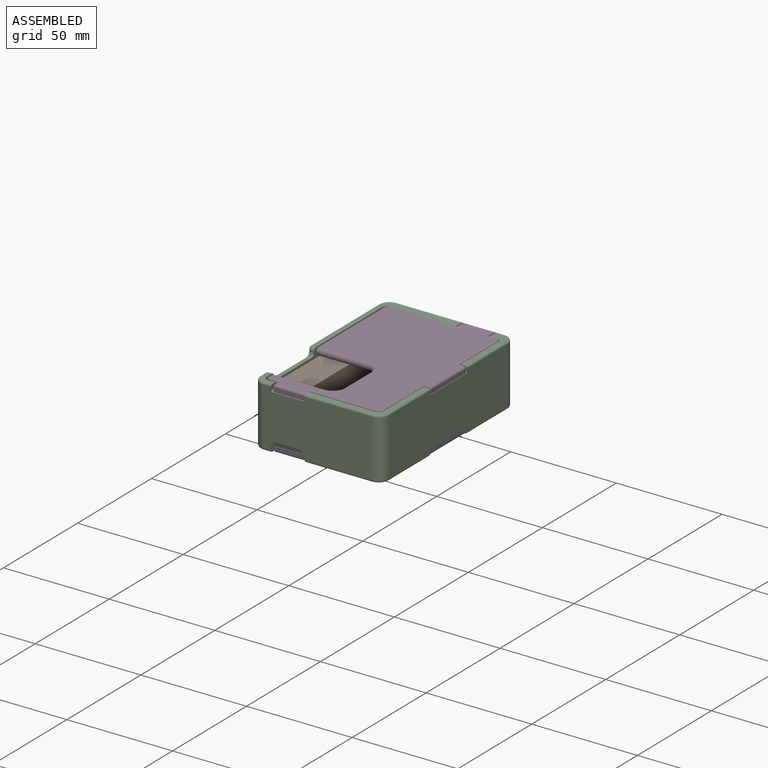
[diagram: assembled view]
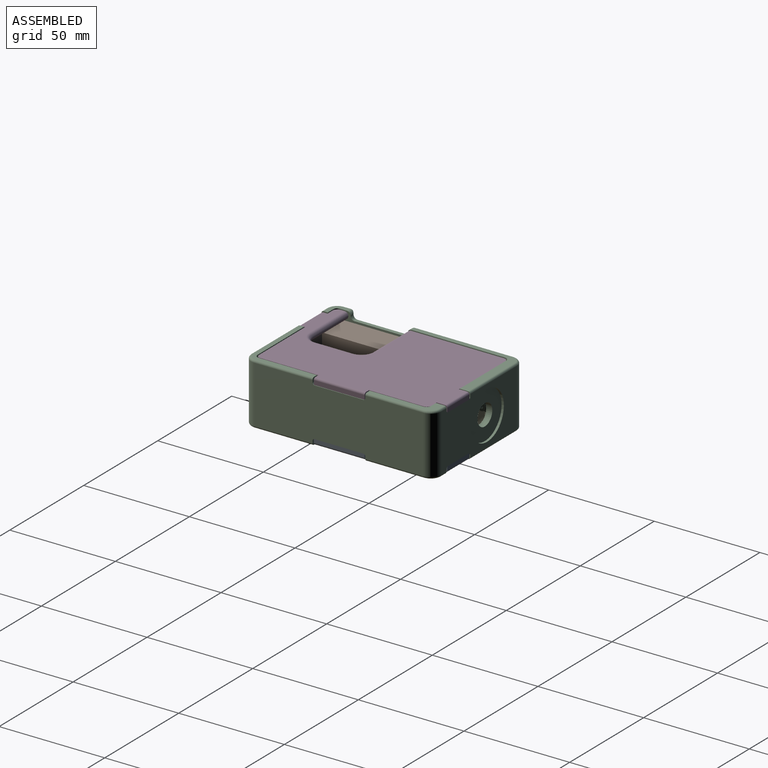
[diagram: assembled view, second angle]
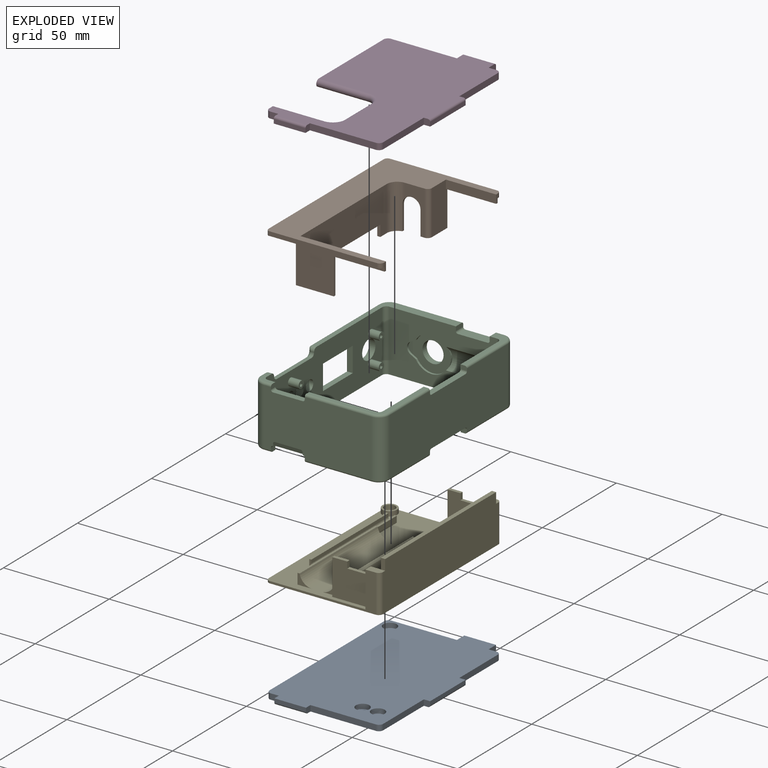
[diagram: exploded view]
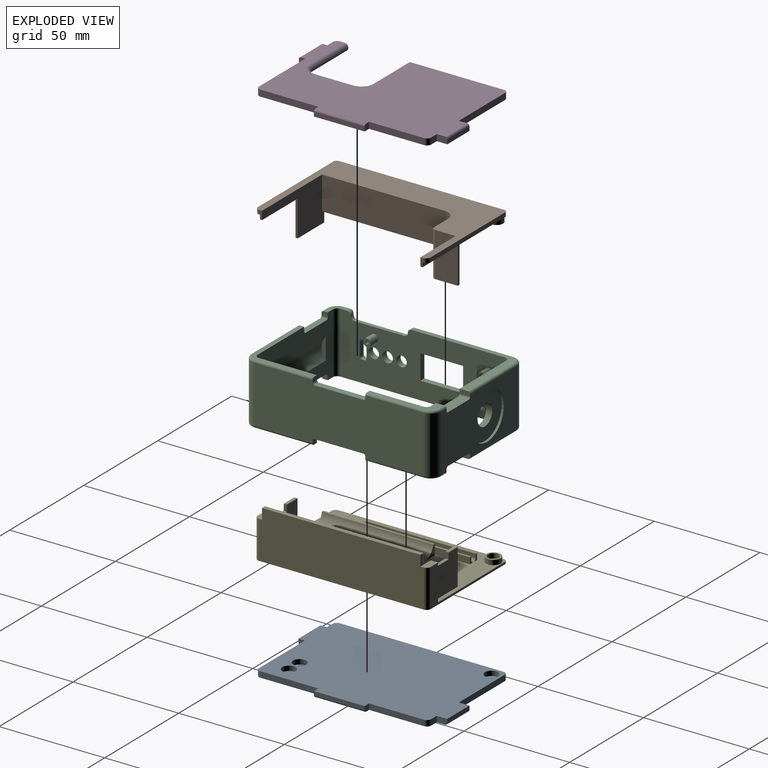
[diagram: exploded view, second angle]
ASSEMBLY  parts=5 mates=4
PART A: 31 faces, bbox 56.8x89.5x2.8 mm
  f0: plane 3x2.75mm, normal (0,1,0), area 8mm2, adj f1,f19,f20,f21,f24
  f1: plane 26x2.75mm, normal (-1,0,0), area 71.5mm2, adj f0,f2,f20,f21
  f2: cylinder r=2mm len=2.75mm, axis (0,0,1), area 8.6mm2, adj f1,f3,f20,f21
  f3: plane 3.75x2.75mm, normal (0,1,0), area 10.3mm2, adj f2,f4,f20,f21
  f4: plane 5x2.75mm, normal (-1,0,0), area 13.5mm2, adj f3,f5,f20,f21,f23
  f5: plane 15x1.75mm, normal (0,1,0), area 26.2mm2, adj f4,f6,f20,f23
  f6: plane 5x2.75mm, normal (1,0,0), area 13.5mm2, adj f5,f7,f20,f21,f23
  f7: plane 31x2.75mm, normal (0,1,0), area 85.2mm2, adj f6,f8,f20,f21
  f8: cylinder r=2mm len=2.75mm, axis (0,0,1), area 8.6mm2, adj f7,f9,f20,f21
  f9: plane 77.5x2.75mm, normal (1,0,0), area 213.1mm2, adj f8,f10,f20,f21
  f10: cylinder r=2mm len=2.75mm, axis (0,0,1), area 8.6mm2, adj f9,f11,f20,f21
  f11: plane 3.75x2.75mm, normal (0,-1,0), area 10.3mm2, adj f10,f12,f20,f21
  f12: plane 3x2.75mm, normal (1,0,0), area 8mm2, adj f11,f13,f20,f21,f22
  f13: plane 15x1.75mm, normal (0,-1,0), area 26.2mm2, adj f12,f14,f20,f22
  f14: plane 3x2.75mm, normal (-1,0,0), area 8mm2, adj f13,f15,f20,f21,f22
  f15: plane 31x2.75mm, normal (0,-1,0), area 85.2mm2, adj f14,f16,f20,f21
  f16: cylinder r=2mm len=2.75mm, axis (0,0,1), area 8.6mm2, adj f15,f17,f20,f21
  f17: plane 27.5x2.75mm, normal (-1,0,0), area 75.6mm2, adj f16,f18,f20,f21
  f18: plane 3x2.75mm, normal (0,-1,0), area 8mm2, adj f17,f19,f20,f21,f24
  f19: plane 24x1.75mm, normal (-1,0,0), area 42mm2, adj f0,f18,f20,f24
  f20: plane 89.5x56.75mm, normal (0,0,-1), area 4474.2mm2, adj f0,f1,f2,f3,f4,f5,f6,f7
  f21: plane 87.5x55.75mm, normal (0,0,1), area 4515.2mm2, adj f0,f1,f2,f3,f4,f6,f7,f8
  f22: cylinder r=1mm len=15mm, axis (-1,0,0), area 23.6mm2, adj f12,f13,f14,f21
  f23: cylinder r=1mm len=15mm, axis (1,0,0), area 23.6mm2, adj f4,f5,f6,f21
  f24: cylinder r=1mm len=24mm, axis (0,1,0), area 37.7mm2, adj f0,f18,f19,f21
  f25: cylinder r=3.17mm len=6.35mm, axis (0,0,-1), area 44.9mm2, adj f20,f26
  f26: plane 6.35x6.35mm, normal (0,0,-1), area 31.7mm2, adj f25
  f27: cylinder r=3.17mm len=6.35mm, axis (0,0,-1), area 44.9mm2, adj f20,f28
  f28: plane 6.35x6.35mm, normal (0,0,-1), area 31.7mm2, adj f27
  f29: cylinder r=3.17mm len=6.35mm, axis (0,0,-1), area 44.9mm2, adj f20,f30
  f30: plane 6.35x6.35mm, normal (0,0,-1), area 31.7mm2, adj f29
PART B: 41 faces, bbox 54.6x81.5x23.2 mm
  f0: plane 3.2x3.2mm, normal (0,0,-1), area 1.4mm2, adj f2,f3,f4,f5,f38
  f1: plane 81.35x54.5mm, normal (0,0,-1), area 1372.4mm2, adj f4,f5,f7,f11,f12,f14,f15,f16
  f2: bspline ~23.1x2mm, area 4.1mm2, adj f0,f3,f5,f10
  f3: cylinder r=2mm len=2mm, axis (0,0,1), area 2mm2, adj f0,f2,f4,f10
  f4: plane 77.75x2mm, normal (-1,0,0), area 155.5mm2, adj f0,f1,f3,f10,f11
  f5: plane 50.25x2mm, normal (0,1,0), area 100.5mm2, adj f0,f1,f2,f10,f23
  f6: plane 12.5x4mm, normal (0,0,-1), area 17.5mm2, adj f7,f18,f19,f26,f27,f35,f36
  f7: plane 25x19mm, normal (0,1,0), area 71.2mm2, adj f1,f6,f12,f18,f34,f35
  f8: plane 17x1mm, normal (1,0,0), area 17mm2, adj f13,f15,f30,f32
  f9: plane 5.25x1.5mm, normal (0,-1,0), area 7.9mm2, adj f14,f22,f31,f33
  f10: plane 81.45x54.6mm, normal (0,0,1), area 1596.7mm2, adj f2,f3,f4,f5,f11,f12,f13,f16
  f11: cylinder r=2mm len=2mm, axis (0,0,-1), area 4.5mm2, adj f1,f4,f10,f24
  f12: plane 4x1.3mm, normal (1,0,0), area 4.6mm2, adj f1,f7,f10,f17,f23,f34
  f13: plane 42x21mm, normal (0,1,0), area 450.4mm2, adj f8,f10,f14,f16,f22,f30,f31,f32
  f14: plane 60.25x19mm, normal (-1,0,0), area 861.2mm2, adj f1,f9,f13,f15,f28,f30,f31,f33
  f15: plane 42x19mm, normal (0,-1,0), area 390mm2, adj f1,f8,f14,f16,f30,f32
  f16: plane 4x1.3mm, normal (1,0,0), area 4.6mm2, adj f1,f10,f13,f15,f25,f32
  f17: plane 23.75x4mm, normal (0,-1,0), area 95mm2, adj f10,f12,f34,f35
  f18: plane 19x11.5mm, normal (-1,0,0), area 218.5mm2, adj f1,f6,f7,f27
  f19: plane 11.5x1mm, normal (-1,0,0), area 11.5mm2, adj f6,f20,f26,f27
  f20: cylinder r=4.25mm len=8.5mm, axis (0,-1,0), area 13.5mm2, adj f19,f21,f26,f27,f29
  f21: plane 11.5x1.1mm, normal (1,0,0), area 12.7mm2, adj f20,f27,f29,f33
  f22: plane 58.25x21mm, normal (1,0,0), area 939.8mm2, adj f9,f10,f13,f29,f31,f33
  f23: cylinder r=2mm len=2mm, axis (0,0,-1), area 6.3mm2, adj f1,f5,f10,f12
  f24: plane 51.37x2mm, normal (0,-1,0), area 102.7mm2, adj f1,f10,f11,f25
  f25: cylinder r=2mm len=2mm, axis (0,0,1), area 6.3mm2, adj f1,f10,f16,f24
  f26: plane 21x9.5mm, normal (0,-1,0), area 86.8mm2, adj f6,f10,f19,f20,f29,f36
  f27: plane 19x11.75mm, normal (0,1,0), area 97.1mm2, adj f1,f6,f18,f19,f20,f21,f28,f33
  f28: cylinder r=5mm len=19mm, axis (0,0,-1), area 149.2mm2, adj f1,f14,f27,f33
  f29: cylinder r=5mm len=21mm, axis (0,0,-1), area 152mm2, adj f10,f20,f21,f22,f26,f33
  f30: plane 18x1mm, normal (0,0,-1), area 18mm2, adj f8,f13,f14,f15
  f31: plane 54x1.5mm, normal (0,0,-1), area 81mm2, adj f9,f13,f14,f22
  f32: plane 24x1mm, normal (0,0,-1), area 24mm2, adj f8,f13,f15,f16
  f33: plane 10.25x5.5mm, normal (0,0,-1), area 19.3mm2, adj f9,f14,f21,f22,f27,f28,f29
  f34: plane 23.75x1mm, normal (0,0,-1), area 23.8mm2, adj f7,f12,f17,f35
  f35: plane 21x10.5mm, normal (1,0,0), area 216.5mm2, adj f6,f7,f10,f17,f34,f36
  f36: cylinder r=2mm len=21mm, axis (0,0,-1), area 66mm2, adj f6,f10,f26,f35
  f37: cylinder r=2.62mm len=5.25mm, axis (0,0,1), area 37.1mm2, adj f39,f40
  f38: cylinder r=3.12mm len=6.25mm, axis (0,0,1), area 44.2mm2, adj f0,f1,f39
  f39: plane 6.25x6.25mm, normal (0,0,-1), area 9mm2, adj f37,f38
  f40: plane 5.25x5.25mm, normal (0,0,-1), area 21.6mm2, adj f37
PART C: 152 faces, bbox 61.8x90.8x29 mm
  f0: plane 51x29mm, normal (0,-1,0), area 955.7mm2, adj f1,f8,f9,f14,f22,f23,f25,f29
  f1: cylinder r=8.5mm len=15.02mm, axis (0,-1,0), area 17.6mm2, adj f0,f83,f87,f126
  f2: plane 51x29mm, normal (0,1,0), area 969.8mm2, adj f5,f7,f10,f15,f20,f21,f25,f32
  f3: plane 78x29mm, normal (1,0,0), area 1752.1mm2, adj f7,f8,f21,f22,f25,f43,f44,f45
  f4: plane 80x27mm, normal (-1,0,0), area 1608.1mm2, adj f16,f17,f48,f75,f80,f101,f102,f103
  f5: plane 14x2.27mm, normal (0,0,-1), area 31.8mm2, adj f2,f67,f68,f88
  f6: cylinder r=5mm len=10mm, axis (0,1,0), area 91.1mm2, adj f82,f83
  f7: plane 7.5x7.3mm, normal (0,0,1), area 23mm2, adj f2,f3,f21,f37,f46,f47,f48,f139
  f8: plane 50.3x35.5mm, normal (0,0,1), area 232mm2, adj f0,f3,f22,f35,f78,f79,f80,f129
  f9: plane 31.5x7.5mm, normal (0,0,1), area 82.4mm2, adj f0,f13,f23,f34,f40,f49,f50,f51
  f10: plane 35.5x31.5mm, normal (0,0,1), area 127.4mm2, adj f2,f13,f20,f38,f41,f52,f53,f54
  f11: plane 51x27mm, normal (0,1,0), area 916.3mm2, adj f16,f24,f29,f30,f31,f34,f35,f36
  f12: plane 80x27mm, normal (1,0,0), area 2060.9mm2, adj f19,f24,f26,f27,f28,f40,f41,f42
  f13: plane 78x29mm, normal (-1,0,0), area 2112.9mm2, adj f9,f10,f14,f15,f20,f23,f26,f27
  f14: plane 31.5x7.5mm, normal (0,0,-1), area 82.4mm2, adj f0,f13,f23,f26,f30,f61,f62,f63
  f15: plane 35.5x31.5mm, normal (0,0,-1), area 127.4mm2, adj f2,f13,f20,f27,f33,f64,f65,f66
  f16: cylinder r=5mm len=27mm, axis (0,0,-1), area 212.1mm2, adj f4,f11,f74,f79
  f17: cylinder r=5mm len=27mm, axis (0,0,-1), area 212.1mm2, adj f4,f18,f47,f76
  f18: plane 51x27mm, normal (0,-1,0), area 1286.3mm2, adj f17,f19,f32,f33,f37,f38,f39,f46
  f19: cylinder r=5mm len=27mm, axis (0,0,-1), area 212.1mm2, adj f12,f18,f53,f65
  f20: cylinder r=2mm len=29mm, axis (0,0,-1), area 91.1mm2, adj f2,f10,f13,f15
  f21: cylinder r=2mm len=29mm, axis (0,0,-1), area 91.1mm2, adj f2,f3,f7,f25
  f22: cylinder r=2mm len=29mm, axis (0,0,-1), area 91.1mm2, adj f0,f3,f8,f25
  f23: cylinder r=2mm len=29mm, axis (0,0,-1), area 91.1mm2, adj f0,f9,f13,f14
  f24: cylinder r=5mm len=27mm, axis (0,0,-1), area 212.1mm2, adj f11,f12,f50,f62
  f25: plane 88x35.5mm, normal (0,0,-1), area 315.8mm2, adj f0,f2,f3,f21,f22,f29,f32,f73
  f26: plane 3x2mm, normal (0,-1,0), area 5.8mm2, adj f12,f13,f14,f61,f69
  f27: plane 3x2mm, normal (0,1,0), area 5.8mm2, adj f12,f13,f15,f64,f70
  f28: plane 23x3mm, normal (0,0,-1), area 69mm2, adj f12,f13,f69,f70
  f29: plane 5x2mm, normal (1,0,0), area 9.8mm2, adj f0,f11,f25,f72,f73
  f30: plane 5x2mm, normal (-1,0,0), area 9.8mm2, adj f0,f11,f14,f63,f71
  f31: plane 14x5mm, normal (0,0,-1), area 70mm2, adj f0,f11,f71,f72
  f32: plane 3x2mm, normal (1,0,0), area 5.8mm2, adj f2,f18,f25,f67,f77
  f33: plane 3x2mm, normal (-1,0,0), area 5.8mm2, adj f2,f15,f18,f66,f68
  f34: plane 5x2mm, normal (-1,0,0), area 9.8mm2, adj f0,f9,f11,f51,f56
  f35: plane 5x2mm, normal (1,0,0), area 9.8mm2, adj f0,f8,f11,f55,f78
  f36: plane 14x5mm, normal (0,0,1), area 70mm2, adj f0,f11,f55,f56
  f37: plane 3x2mm, normal (1,0,0), area 5.8mm2, adj f2,f7,f18,f46,f57
  f38: plane 3x2mm, normal (-1,0,0), area 5.8mm2, adj f2,f10,f18,f52,f58
  f39: plane 14x3mm, normal (0,0,1), area 42mm2, adj f2,f18,f57,f58
  f40: plane 3x2mm, normal (0,-1,0), area 5.8mm2, adj f9,f12,f13,f49,f60
  f41: plane 3x2mm, normal (0,1,0), area 5.8mm2, adj f10,f12,f13,f54,f59
  f42: plane 23x3mm, normal (0,0,1), area 69mm2, adj f12,f13,f59,f60
  f43: plane 1.3x0.1mm, normal (0,1,0), area 0.1mm2, adj f3,f135,f137,f139
  f44: plane 1.3x0.1mm, normal (0,-1,0), area 0.1mm2, adj f3,f129,f131,f132
  f45: plane 23.6x1.3mm, normal (0,0,1), area 30.7mm2, adj f3,f132,f134,f135
  f46: cylinder r=1mm len=3.5mm, axis (-1,0,0), area 5.5mm2, adj f7,f18,f37,f47
  f47: torus R=4mm, axis (0,0,1), area 11.4mm2, adj f7,f17,f46,f48
  f48: cylinder r=1mm len=3.3mm, axis (0,1,0), area 5.2mm2, adj f4,f7,f47,f138
  f49: cylinder r=1mm len=27.5mm, axis (0,-1,0), area 43.2mm2, adj f9,f12,f40,f50
  f50: torus R=4mm, axis (0,0,1), area 11.4mm2, adj f9,f24,f49,f51
  f51: cylinder r=1mm len=3.5mm, axis (1,0,0), area 5.5mm2, adj f9,f11,f34,f50
  f52: cylinder r=1mm len=31.5mm, axis (-1,0,0), area 49.5mm2, adj f10,f18,f38,f53
  f53: torus R=4mm, axis (0,0,1), area 11.4mm2, adj f10,f19,f52,f54
  f54: cylinder r=1mm len=27.5mm, axis (0,-1,0), area 43.2mm2, adj f10,f12,f41,f53
  f55: cylinder r=1mm len=5mm, axis (0,-1,0), area 7.9mm2, adj f0,f11,f35,f36
  f56: cylinder r=1mm len=5mm, axis (0,1,0), area 7.9mm2, adj f0,f11,f34,f36
  f57: cylinder r=1mm len=3mm, axis (0,-1,0), area 4.7mm2, adj f2,f18,f37,f39
  f58: cylinder r=1mm len=3mm, axis (0,1,0), area 4.7mm2, adj f2,f18,f38,f39
  f59: cylinder r=1mm len=3mm, axis (1,0,0), area 4.7mm2, adj f12,f13,f41,f42
  f60: cylinder r=1mm len=3mm, axis (-1,0,0), area 4.7mm2, adj f12,f13,f40,f42
  f61: cylinder r=1mm len=27.5mm, axis (0,1,0), area 43.2mm2, adj f12,f14,f26,f62
  f62: torus R=4mm, axis (0,0,1), area 11.4mm2, adj f14,f24,f61,f63
  f63: cylinder r=1mm len=3.5mm, axis (-1,0,0), area 5.5mm2, adj f11,f14,f30,f62
  f64: cylinder r=1mm len=27.5mm, axis (0,1,0), area 43.2mm2, adj f12,f15,f27,f65
  f65: torus R=4mm, axis (0,0,1), area 11.4mm2, adj f15,f19,f64,f66
  f66: cylinder r=1mm len=31.5mm, axis (1,0,0), area 49.5mm2, adj f15,f18,f33,f65
  f67: cylinder r=1mm len=3mm, axis (0,-1,0), area 4.7mm2, adj f2,f5,f18,f32,f92
  f68: cylinder r=1mm len=3mm, axis (0,1,0), area 4.7mm2, adj f2,f5,f18,f33,f91
  f69: cylinder r=1mm len=3mm, axis (-1,0,0), area 4.7mm2, adj f12,f13,f26,f28
  f70: cylinder r=1mm len=3mm, axis (1,0,0), area 4.7mm2, adj f12,f13,f27,f28
  f71: cylinder r=1mm len=5mm, axis (0,1,0), area 7.9mm2, adj f0,f11,f30,f31
  f72: cylinder r=1mm len=5mm, axis (0,-1,0), area 7.9mm2, adj f0,f11,f29,f31
  f73: cylinder r=1mm len=31.5mm, axis (-1,0,0), area 49.5mm2, adj f11,f25,f29,f74
  f74: torus R=4mm, axis (0,0,1), area 11.4mm2, adj f16,f25,f73,f75
  f75: cylinder r=1mm len=80mm, axis (0,-1,0), area 125.7mm2, adj f4,f25,f74,f76
  f76: torus R=4mm, axis (0,0,1), area 11.4mm2, adj f17,f25,f75,f77
  f77: cylinder r=1mm len=3.5mm, axis (1,0,0), area 5.5mm2, adj f18,f25,f32,f76
  f78: cylinder r=1mm len=31.5mm, axis (1,0,0), area 49.5mm2, adj f8,f11,f35,f79
  f79: torus R=4mm, axis (0,0,1), area 11.4mm2, adj f8,f16,f78,f80
  f80: cylinder r=1mm len=46.3mm, axis (0,1,0), area 72.7mm2, adj f4,f8,f79,f130
  f81: cylinder r=11.25mm len=22.5mm, axis (0,1,0), area 77.8mm2, adj f11,f82
  f82: plane 22.5x22.5mm, normal (0,1,0), area 319.1mm2, adj f6,f81
  f83: plane 20.13x17mm, normal (0,-1,0), area 166.2mm2, adj f1,f6,f84,f85,f86,f87,f128
  f84: cylinder r=8.5mm len=15.1mm, axis (0,-1,0), area 17.8mm2, adj f0,f83,f85,f127
  f85: plane 2.7x1.54mm, normal (0.5,0,-0.87), area 3.1mm2, adj f0,f83,f84,f86
  f86: cylinder r=3mm len=5.2mm, axis (0,-1,0), area 6.3mm2, adj f0,f83,f85,f87
  f87: plane 2.75x1.6mm, normal (0.5,0,0.86), area 3.2mm2, adj f0,f1,f83,f86
  f88: plane 14x2mm, normal (0,-0.94,-0.34), area 29.3mm2, adj f5,f18,f89,f90,f91,f92
  f89: cylinder r=1mm len=1mm, axis (0,-1,0), area 0.2mm2, adj f18,f88,f92
  f90: cylinder r=1mm len=1mm, axis (0,-1,0), area 0.2mm2, adj f18,f88,f91
  f91: plane 1x0.73mm, normal (-1,0,0), area 0.5mm2, adj f18,f68,f88,f90
  f92: plane 1x0.73mm, normal (1,0,0), area 0.5mm2, adj f18,f67,f88,f89
  f93: cylinder r=1mm len=2.5mm, axis (-1,0,0), area 3.9mm2, adj f3,f94,f98,f141
  f94: plane 6.4x2.5mm, normal (0,-1,0), area 16mm2, adj f3,f93,f95,f140
  f95: cylinder r=1mm len=2.5mm, axis (-1,0,0), area 3.9mm2, adj f3,f94,f96,f142
  f96: plane 2.5x1.2mm, normal (0,0,1), area 3mm2, adj f3,f95,f97,f144
  f97: cylinder r=1mm len=2.5mm, axis (-1,0,0), area 3.9mm2, adj f3,f96,f99,f146
  f98: plane 2.5x1.2mm, normal (0,0,-1), area 3mm2, adj f3,f93,f100,f143
  f99: plane 6.4x2.5mm, normal (0,1,0), area 16mm2, adj f3,f97,f100,f147
  f100: cylinder r=1mm len=2.5mm, axis (-1,0,0), area 3.9mm2, adj f3,f98,f99,f145
  f101: cylinder r=2.5mm len=5mm, axis (-1,0,0), area 47.1mm2, adj f3,f4
  f102: cylinder r=2.5mm len=5mm, axis (-1,0,0), area 47.1mm2, adj f3,f4
  f103: cylinder r=2.5mm len=5mm, axis (-1,0,0), area 47.1mm2, adj f3,f4
  f104: plane 20.16x2.5mm, normal (0,0,1), area 50.4mm2, adj f3,f105,f107,f148
  f105: plane 11.72x2.5mm, normal (0,1,0), area 29.3mm2, adj f3,f104,f106,f149
  f106: plane 20.16x2.5mm, normal (0,0,-1), area 50.4mm2, adj f3,f105,f107,f151
  f107: plane 11.72x2.5mm, normal (0,-1,0), area 29.3mm2, adj f3,f104,f106,f150
  f108: cylinder r=4.5mm len=9mm, axis (-1,0,0), area 84.8mm2, adj f3,f4
  f109: cylinder r=0.8mm len=5mm, axis (-1,0,0), area 25.1mm2, adj f111,f112
  f110: cylinder r=1.8mm len=5mm, axis (-1,0,0), area 56.5mm2, adj f3,f111
  f111: plane 3.6x3.6mm, normal (1,0,0), area 8.2mm2, adj f109,f110
  f112: plane 1.6x1.6mm, normal (1,0,0), area 2mm2, adj f109
  f113: cylinder r=0.8mm len=5mm, axis (-1,0,0), area 25.1mm2, adj f115,f116
  f114: cylinder r=1.8mm len=5mm, axis (-1,0,0), area 56.5mm2, adj f3,f115
  f115: plane 3.6x3.6mm, normal (1,0,0), area 8.2mm2, adj f113,f114
  f116: plane 1.6x1.6mm, normal (1,0,0), area 2mm2, adj f113
  f117: cylinder r=0.8mm len=5mm, axis (-1,0,0), area 25.1mm2, adj f119,f120
  f118: cylinder r=1.8mm len=5mm, axis (-1,0,0), area 56.5mm2, adj f3,f119
  f119: plane 3.6x3.6mm, normal (1,0,0), area 8.2mm2, adj f117,f118
  f120: plane 1.6x1.6mm, normal (1,0,0), area 2mm2, adj f117
  f121: plane 10.1x2mm, normal (-1,0,0), area 13.8mm2, adj f0,f126,f127
  f122: plane 10.1x2mm, normal (-1,0,0), area 13.8mm2, adj f2,f124,f125
  f123: plane 10.1x2mm, normal (1,0,0), area 13.8mm2, adj f2,f124,f125
  f124: cylinder r=7.5mm len=41mm, axis (1,0,0), area 227.9mm2, adj f2,f122,f123,f125
  f125: cylinder r=7.5mm len=41mm, axis (1,0,0), area 227.9mm2, adj f2,f122,f123,f124
  f126: cylinder r=7.5mm len=19.32mm, axis (-1,0,0), area 101.3mm2, adj f0,f1,f121,f127,f128
  f127: cylinder r=7.5mm len=19.25mm, axis (-1,0,0), area 101.1mm2, adj f0,f84,f121,f126,f128
  f128: cylinder r=8.5mm len=7.39mm, axis (0,-1,0), area 5.1mm2, adj f83,f126,f127
  f129: cylinder r=1.7mm len=2mm, axis (1,0,0), area 4.7mm2, adj f3,f8,f44,f130
  f130: bspline ~1.79x1.7mm, area 2.8mm2, adj f80,f129,f131
  f131: cylinder r=1.7mm len=1.7mm, axis (0,0,-1), area 1.5mm2, adj f4,f44,f130,f133
  f132: cylinder r=1.7mm len=1.7mm, axis (-1,0,0), area 3.5mm2, adj f3,f44,f45,f133
  f133: torus R=3.4mm, axis (1,0,0), area 9.7mm2, adj f4,f131,f132,f134
  f134: cylinder r=1.7mm len=23.6mm, axis (0,1,0), area 63mm2, adj f4,f45,f133,f136
  f135: cylinder r=1.7mm len=1.7mm, axis (1,0,0), area 3.5mm2, adj f3,f43,f45,f136
  f136: torus R=3.4mm, axis (1,0,0), area 9.7mm2, adj f4,f134,f135,f137
  f137: cylinder r=1.7mm len=1.7mm, axis (0,0,-1), area 1.5mm2, adj f4,f43,f136,f138
  f138: bspline ~2.05x1.7mm, area 2.8mm2, adj f48,f137,f139
  f139: cylinder r=1.7mm len=2mm, axis (-1,0,0), area 4.7mm2, adj f3,f7,f43,f138
  f140: cylinder r=0.5mm len=6.4mm, axis (0,0,-1), area 5mm2, adj f4,f94,f141,f142
  f141: torus R=1.5mm, axis (1,0,0), area 1.5mm2, adj f4,f93,f140,f143
  f142: torus R=1.5mm, axis (1,0,0), area 1.5mm2, adj f4,f95,f140,f144
  f143: cylinder r=0.5mm len=1.2mm, axis (0,1,0), area 0.9mm2, adj f4,f98,f141,f145
  f144: cylinder r=0.5mm len=1.2mm, axis (0,-1,0), area 0.9mm2, adj f4,f96,f142,f146
  f145: torus R=1.5mm, axis (1,0,0), area 1.5mm2, adj f4,f100,f143,f147
  f146: torus R=1.5mm, axis (1,0,0), area 1.5mm2, adj f4,f97,f144,f147
  f147: cylinder r=0.5mm len=6.4mm, axis (0,0,1), area 5mm2, adj f4,f99,f145,f146
  f148: cylinder r=0.5mm len=21.16mm, axis (0,-1,0), area 16.1mm2, adj f4,f104,f149,f150
  f149: cylinder r=0.5mm len=12.72mm, axis (0,0,1), area 9.5mm2, adj f4,f105,f148,f151
  f150: cylinder r=0.5mm len=12.72mm, axis (0,0,-1), area 9.5mm2, adj f4,f107,f148,f151
  f151: cylinder r=0.5mm len=21.16mm, axis (0,1,0), area 16.1mm2, adj f4,f106,f149,f150
PART D: 37 faces, bbox 57x89.5x3.4 mm
  f0: plane 5x3mm, normal (-1,0,0), area 14.8mm2, adj f1,f20,f21,f22,f23
  f1: plane 31.25x3mm, normal (0,1,0), area 93.8mm2, adj f0,f2,f21,f22
  f2: cylinder r=2mm len=3mm, axis (0,0,-1), area 9.4mm2, adj f1,f3,f21,f22
  f3: plane 45.6x3mm, normal (-1,0,0), area 135.9mm2, adj f2,f21,f22,f26
  f4: plane 3.9x3mm, normal (-1,0,0), area 10.8mm2, adj f5,f21,f22,f30
  f5: cylinder r=2mm len=3mm, axis (0,0,-1), area 9.4mm2, adj f4,f6,f21,f22
  f6: plane 3.75x3mm, normal (0,-1,0), area 11.2mm2, adj f5,f7,f21,f22
  f7: plane 3x3mm, normal (-1,0,0), area 8.8mm2, adj f6,f8,f21,f22,f25
  f8: plane 15x2mm, normal (0,-1,0), area 30mm2, adj f7,f9,f22,f25
  f9: plane 3x3mm, normal (1,0,0), area 8.8mm2, adj f8,f10,f21,f22,f25
  f10: plane 31.25x3mm, normal (0,-1,0), area 93.8mm2, adj f9,f11,f21,f22
  f11: cylinder r=2mm len=3mm, axis (0,0,-1), area 9.4mm2, adj f10,f12,f21,f22
  f12: plane 27.5x3mm, normal (1,0,0), area 82.5mm2, adj f11,f13,f21,f22
  f13: plane 3x3mm, normal (0,-1,0), area 8.8mm2, adj f12,f14,f21,f22,f24
  f14: plane 24x2mm, normal (1,0,0), area 48mm2, adj f13,f15,f22,f24
  f15: plane 3x3mm, normal (0,1,0), area 8.8mm2, adj f14,f16,f21,f22,f24
  f16: plane 26x3mm, normal (1,0,0), area 78mm2, adj f15,f17,f21,f22
  f17: cylinder r=2mm len=3mm, axis (0,0,-1), area 9.4mm2, adj f16,f18,f21,f22
  f18: plane 3.75x3mm, normal (0,1,0), area 11.2mm2, adj f17,f19,f21,f22
  f19: plane 5x3mm, normal (1,0,0), area 14.8mm2, adj f18,f20,f21,f22,f23
  f20: plane 15x2mm, normal (0,1,0), area 30mm2, adj f0,f19,f22,f23
  f21: plane 87.5x56mm, normal (0,0,1), area 3590.9mm2, adj f0,f1,f2,f3,f4,f5,f6,f7
  f22: plane 89.5x57mm, normal (0,0,-1), area 3643.3mm2, adj f0,f1,f2,f3,f4,f5,f6,f7
  f23: cylinder r=1mm len=15mm, axis (1,0,0), area 23.6mm2, adj f0,f19,f20,f21
  f24: cylinder r=1mm len=24mm, axis (0,-1,0), area 37.7mm2, adj f13,f14,f15,f21
  f25: cylinder r=1mm len=15mm, axis (-1,0,0), area 23.6mm2, adj f7,f8,f9,f21
  f26: cylinder r=1.7mm len=24mm, axis (-1,0,0), area 99.6mm2, adj f3,f21,f22,f27
  f27: torus R=6.7mm, axis (0,0,1), area 35.7mm2, adj f21,f22,f26,f28
  f28: cylinder r=1.7mm len=18mm, axis (0,1,0), area 74.7mm2, adj f21,f22,f27,f29
  f29: torus R=6.7mm, axis (0,0,1), area 35.7mm2, adj f21,f22,f28,f30
  f30: cylinder r=1.7mm len=24mm, axis (1,0,0), area 99.6mm2, adj f4,f21,f22,f29
  f31: cylinder r=3.17mm len=6.35mm, axis (0,0,-1), area 44.9mm2, adj f22,f32
  f32: plane 6.35x6.35mm, normal (0,0,-1), area 31.7mm2, adj f31
  f33: cylinder r=3.17mm len=6.35mm, axis (0,0,-1), area 44.9mm2, adj f22,f34
  f34: plane 6.35x6.35mm, normal (0,0,-1), area 31.7mm2, adj f33
  f35: cylinder r=3.17mm len=6.35mm, axis (0,0,-1), area 44.9mm2, adj f22,f36
  f36: plane 6.35x6.35mm, normal (0,0,-1), area 31.7mm2, adj f35
PART E: 66 faces, bbox 54x82x23 mm
  f0: plane 17x16.12mm, normal (0,1,0), area 244.1mm2, adj f11,f26,f29,f30,f48,f49
  f1: plane 6.88x3.5mm, normal (0,0,1), area 23.2mm2, adj f4,f12,f13,f14,f29,f36
  f2: plane 7.12x1.5mm, normal (0,0,1), area 10.7mm2, adj f3,f31,f45,f46
  f3: plane 22x18mm, normal (0,1,0), area 322.3mm2, adj f2,f5,f6,f8,f9,f20,f28,f32
  f4: plane 21x18mm, normal (0,-1,0), area 310.3mm2, adj f1,f7,f8,f9,f10,f20,f26,f28
  f5: plane 0.29x0.01mm, normal (0,0,1), area 0mm2, adj f3,f9,f40
  f6: plane 0.29x0.01mm, normal (0,0,1), area 0mm2, adj f3,f8,f41
  f7: plane 0.29x0.01mm, normal (0,0,1), area 0mm2, adj f4,f8,f43
  f8: cylinder r=7mm len=75mm, axis (0,-1,0), area 468mm2, adj f3,f4,f6,f7,f41,f42,f43,f44
  f9: cylinder r=7mm len=75mm, axis (0,-1,0), area 468mm2, adj f3,f4,f5,f10,f28,f38,f39,f40
  f10: plane 0.29x0.01mm, normal (0,0,1), area 0mm2, adj f4,f9,f39
  f11: plane 82x47.12mm, normal (0,0,1), area 1566mm2, adj f0,f14,f15,f16,f17,f18,f21,f22
  f12: plane 78x23mm, normal (1,0,0), area 1779mm2, adj f1,f13,f19,f20,f33,f36,f37,f50
  f13: cylinder r=2mm len=18mm, axis (0,0,-1), area 56.5mm2, adj f1,f12,f14,f20
  f14: plane 50x18mm, normal (0,1,0), area 132.9mm2, adj f1,f11,f13,f15,f20,f29
  f15: cylinder r=2mm len=2mm, axis (0,0,-1), area 3.1mm2, adj f11,f14,f16,f20
  f16: plane 78x1mm, normal (-1,0,0), area 78mm2, adj f11,f15,f17,f20
  f17: cylinder r=2mm len=2mm, axis (0,0,-1), area 3.1mm2, adj f11,f16,f18,f20
  f18: plane 50x18mm, normal (0,-1,0), area 132.9mm2, adj f11,f17,f19,f20,f32,f33
  f19: cylinder r=2mm len=18mm, axis (0,0,-1), area 56.5mm2, adj f12,f18,f20,f33
  f20: plane 82x54mm, normal (0,0,-1), area 3532.3mm2, adj f3,f4,f12,f13,f14,f15,f16,f17
  f21: plane 7x5mm, normal (0,1,0), area 12.4mm2, adj f11,f22,f24,f35
  f22: plane 52.74x5mm, normal (-1,0,0), area 263.7mm2, adj f11,f21,f23,f24
  f23: plane 7x5mm, normal (0,-1,0), area 12.4mm2, adj f11,f22,f24,f35
  f24: plane 52.74x1mm, normal (0,0,1), area 52.7mm2, adj f21,f22,f23,f35
  f25: plane 6x5mm, normal (0,-1,0), area 7.4mm2, adj f11,f34,f45
  f26: plane 23.76x17mm, normal (-1,0,0), area 136.8mm2, adj f0,f4,f11,f27,f28,f30
  f27: plane 7x5mm, normal (0,1,0), area 12.4mm2, adj f11,f26,f28,f34
  f28: plane 75x2mm, normal (0,0,1), area 127.7mm2, adj f3,f4,f9,f26,f27,f34
  f29: plane 17x3.5mm, normal (-1,0,0), area 38.5mm2, adj f0,f1,f4,f11,f14,f49
  f30: plane 6.12x1.5mm, normal (0,0,1), area 9.2mm2, adj f0,f4,f26,f48
  f31: plane 17.12x17mm, normal (0,-1,0), area 261.1mm2, adj f2,f11,f32,f45,f46,f47
  f32: plane 17x3.5mm, normal (-1,0,0), area 38.5mm2, adj f3,f11,f18,f31,f33,f47
  f33: plane 6.88x3.5mm, normal (0,0,1), area 23.2mm2, adj f3,f12,f18,f19,f32,f37
  f34: cylinder r=6.1mm len=52.74mm, axis (0,-1,0), area 447mm2, adj f11,f25,f27,f28
  f35: cylinder r=6.1mm len=52.74mm, axis (0,-1,0), area 447mm2, adj f11,f21,f23,f24
  f36: plane 5x2mm, normal (0,1,0), area 10mm2, adj f1,f12,f44,f50
  f37: plane 5x2mm, normal (0,-1,0), area 10mm2, adj f12,f33,f44,f50
  f38: plane 69x1.55mm, normal (1,0,0), area 106.6mm2, adj f9,f20,f39,f40
  f39: cylinder r=3mm len=3mm, axis (0,0,-1), area 5.9mm2, adj f4,f9,f10,f20,f38
  f40: cylinder r=3mm len=3mm, axis (0,0,-1), area 5.9mm2, adj f3,f5,f9,f20,f38
  f41: cylinder r=3mm len=3mm, axis (0,0,-1), area 5.9mm2, adj f3,f6,f8,f20,f42
  f42: plane 69x1.55mm, normal (-1,0,0), area 106.6mm2, adj f8,f20,f41,f43
  f43: cylinder r=3mm len=3mm, axis (0,0,-1), area 5.9mm2, adj f4,f7,f8,f20,f42
  f44: plane 75x17mm, normal (-1,0,0), area 1275mm2, adj f3,f4,f8,f36,f37,f50
  f45: plane 17x1.5mm, normal (-1,0,0), area 25.5mm2, adj f2,f3,f11,f25,f31
  f46: plane 3x1.5mm, normal (1,0,0), area 4.5mm2, adj f2,f3,f31,f47
  f47: plane 10x1.5mm, normal (0,0,1), area 15mm2, adj f3,f31,f32,f46
  f48: plane 3x1.5mm, normal (1,0,0), area 4.5mm2, adj f0,f4,f30,f49
  f49: plane 10x1.5mm, normal (0,0,1), area 15mm2, adj f0,f4,f29,f48
  f50: plane 75x2mm, normal (0,0,1), area 150mm2, adj f12,f36,f37,f44
  f51: cylinder r=2.62mm len=5.25mm, axis (0,0,-1), area 37.1mm2, adj f53,f54
  f52: cylinder r=3.5mm len=7mm, axis (0,0,-1), area 49.5mm2, adj f11,f53
  f53: plane 7x7mm, normal (0,0,1), area 16.8mm2, adj f51,f52
  f54: plane 5.25x5.25mm, normal (0,0,1), area 21.6mm2, adj f51
  f55: plane 3x2.5mm, normal (0,-1,0), area 3.5mm2, adj f11,f56,f58,f59,f65
  f56: plane 52.08x3mm, normal (1,0,0), area 156.2mm2, adj f11,f55,f57,f59
  f57: plane 3x2.5mm, normal (0,1,0), area 3.5mm2, adj f11,f56,f58,f59,f65
  f58: plane 52.08x1.5mm, normal (-1,0,0), area 78.1mm2, adj f55,f57,f59,f65
  f59: plane 52.08x1mm, normal (0,0,1), area 52.1mm2, adj f55,f56,f57,f58
  f60: plane 3x2.5mm, normal (0,-1,0), area 3.5mm2, adj f11,f61,f63,f64,f65
  f61: plane 52.08x1.5mm, normal (1,0,0), area 78.1mm2, adj f60,f62,f64,f65
  f62: plane 3x2.5mm, normal (0,1,0), area 3.5mm2, adj f11,f61,f63,f64,f65
  f63: plane 52.08x3mm, normal (-1,0,0), area 156.2mm2, adj f11,f60,f62,f64
  f64: plane 52.08x1mm, normal (0,0,1), area 52.1mm2, adj f60,f61,f62,f63
  f65: cylinder r=1.5mm len=52.08mm, axis (0,1,0), area 245.4mm2, adj f55,f57,f58,f60,f61,f62
PLACE A rot(axis=(0,-1,0),180deg) t=(-19.42,-0.57,5.98)mm
PLACE B t=(-29.78,-11.13,24.23)mm
PLACE C t=(-19.07,-1.19,0.23)mm
PLACE D t=(-18.07,-2.94,26.23)mm
PLACE E t=(-18.57,-2.19,3.23)mm
MATE slider D.f22 <-> C.f36  axis (0,0,-1) through (-5.07,43.81,26.23)mm
MATE fastened A.f20 <-> C.f31  axis (0,0,1) through (-5.07,43.81,3.23)mm
MATE fastened E.f20 <-> A.f20  axis (0,0,-1) through (-43.57,38.81,3.23)mm
MATE fastened B.f34 <-> E.f1  axis (0,0,-1) through (8.43,35.31,21.23)mm
